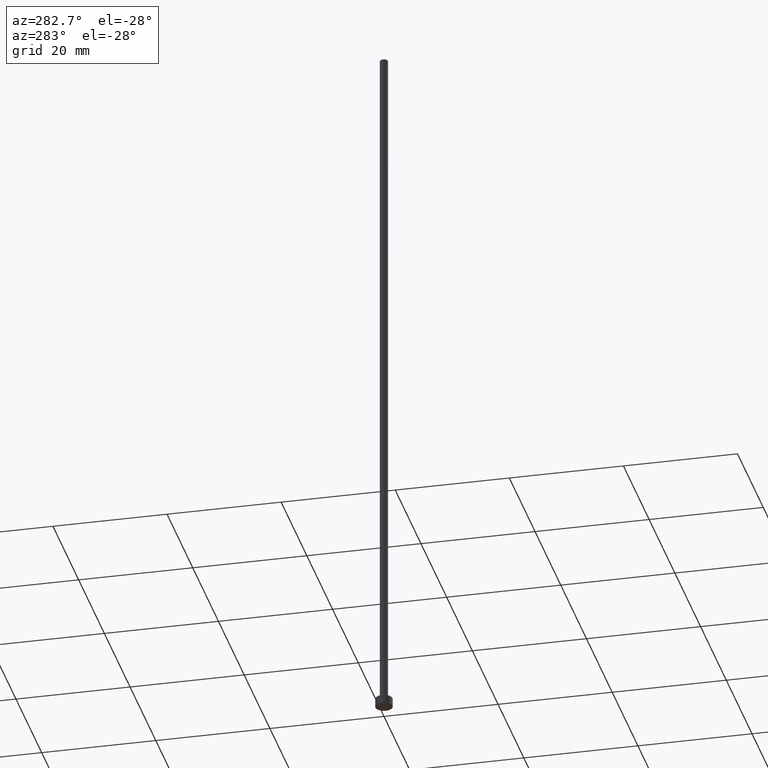
[diagram: clean part render]
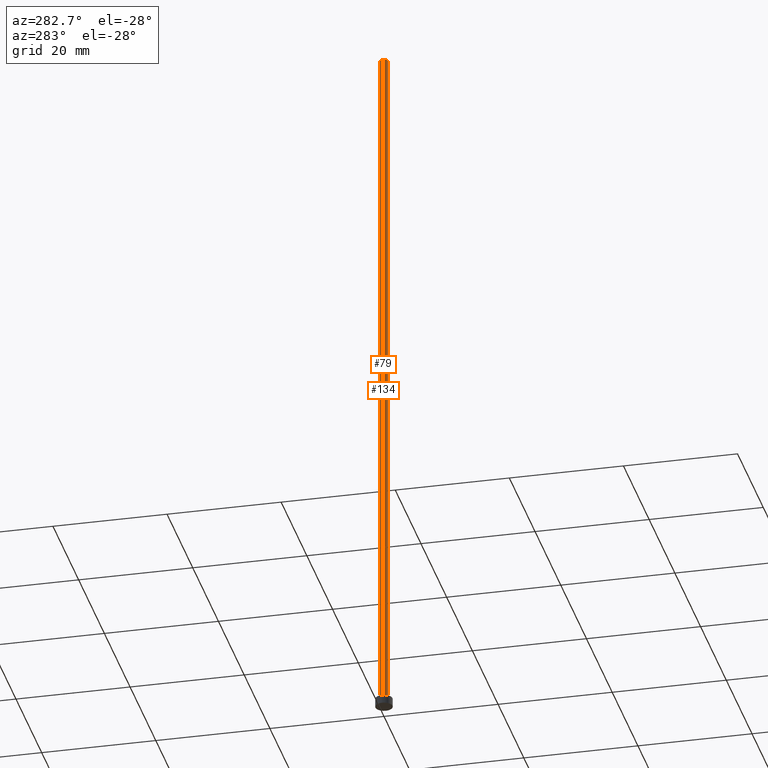
[diagram: same view with one multi-face feature highlighted, each face labeled with its STEP entity id]
A machine part, auxiliary view. The highlighted faces form ONE feature: a constant-radius fillet chain: 2 tangent blend faces with common blend radius 0.7 mm. The faces share edges in the B-rep.
Their STEP definitions:
[1] entity #79 (Cylinder):
#6 = CIRCLE ( 'NONE', #38, 0.6999999999999999556 ) ;
#8 = ORIENTED_EDGE ( 'NONE', *, *, #213, .F. ) ;
#11 = EDGE_CURVE ( 'NONE', #186, #139, #252, .T. ) ;
#13 = CARTESIAN_POINT ( 'NONE',  ( 0.000000000000000000, 0.000000000000000000, 125.0000000000000000 ) ) ;
#16 = CARTESIAN_POINT ( 'NONE',  ( 0.000000000000000000, 0.000000000000000000, 1.500000000000000000 ) ) ;
#35 = VECTOR ( 'NONE', #202, 1000.000000000000000 ) ;
#38 = AXIS2_PLACEMENT_3D ( 'NONE', #16, #148, #215 ) ;
#43 = CARTESIAN_POINT ( 'NONE',  ( -0.6999999999999999556, 0.000000000000000000, 125.0000000000000000 ) ) ;
#61 = AXIS2_PLACEMENT_3D ( 'NONE', #224, #182, #244 ) ;
#67 = DIRECTION ( 'NONE',  ( -1.000000000000000000, 0.000000000000000000, 0.000000000000000000 ) ) ;
#79 = ADVANCED_FACE ( 'NONE', ( #183 ), #180, .T. ) ;
#82 = CARTESIAN_POINT ( 'NONE',  ( 0.6999999999999999556, 8.572527594031471957E-17, 125.0000000000000000 ) ) ;
#84 = ORIENTED_EDGE ( 'NONE', *, *, #11, .F. ) ;
#88 = EDGE_CURVE ( 'NONE', #91, #139, #6, .T. ) ;
#90 = CARTESIAN_POINT ( 'NONE',  ( -0.6999999999999999556, 0.000000000000000000, 125.0000000000000000 ) ) ;
#91 = VERTEX_POINT ( 'NONE', #144 ) ;
#94 = CARTESIAN_POINT ( 'NONE',  ( 0.6999999999999999556, 8.572527594031471957E-17, 1.500000000000000000 ) ) ;
#102 = ORIENTED_EDGE ( 'NONE', *, *, #88, .T. ) ;
#113 = VERTEX_POINT ( 'NONE', #43 ) ;
#136 = LINE ( 'NONE', #90, #35 ) ;
#137 = AXIS2_PLACEMENT_3D ( 'NONE', #13, #245, #67 ) ;
#139 = VERTEX_POINT ( 'NONE', #94 ) ;
#143 = DIRECTION ( 'NONE',  ( -0.000000000000000000, -0.000000000000000000, -1.000000000000000000 ) ) ;
#144 = CARTESIAN_POINT ( 'NONE',  ( -0.6999999999999999556, 0.000000000000000000, 1.500000000000000000 ) ) ;
#148 = DIRECTION ( 'NONE',  ( 0.000000000000000000, 0.000000000000000000, 1.000000000000000000 ) ) ;
#159 = EDGE_CURVE ( 'NONE', #113, #91, #136, .T. ) ;
#164 = CIRCLE ( 'NONE', #61, 0.6999999999999999556 ) ;
#180 = CYLINDRICAL_SURFACE ( 'NONE', #137, 0.6999999999999999556 ) ;
#182 = DIRECTION ( 'NONE',  ( 0.000000000000000000, 0.000000000000000000, 1.000000000000000000 ) ) ;
#183 = FACE_OUTER_BOUND ( 'NONE', #205, .T. ) ;
#186 = VERTEX_POINT ( 'NONE', #243 ) ;
#192 = VECTOR ( 'NONE', #143, 1000.000000000000000 ) ;
#202 = DIRECTION ( 'NONE',  ( -0.000000000000000000, -0.000000000000000000, -1.000000000000000000 ) ) ;
#205 = EDGE_LOOP ( 'NONE', ( #84, #8, #208, #102 ) ) ;
#208 = ORIENTED_EDGE ( 'NONE', *, *, #159, .T. ) ;
#213 = EDGE_CURVE ( 'NONE', #113, #186, #164, .T. ) ;
#215 = DIRECTION ( 'NONE',  ( 1.000000000000000000, 0.000000000000000000, 0.000000000000000000 ) ) ;
#224 = CARTESIAN_POINT ( 'NONE',  ( 0.000000000000000000, 0.000000000000000000, 125.0000000000000000 ) ) ;
#243 = CARTESIAN_POINT ( 'NONE',  ( 0.6999999999999999556, 8.572527594031471957E-17, 125.0000000000000000 ) ) ;
#244 = DIRECTION ( 'NONE',  ( 1.000000000000000000, 0.000000000000000000, 0.000000000000000000 ) ) ;
#245 = DIRECTION ( 'NONE',  ( -0.000000000000000000, -0.000000000000000000, -1.000000000000000000 ) ) ;
#252 = LINE ( 'NONE', #82, #192 ) ;
[2] entity #134 (Cylinder):
#11 = EDGE_CURVE ( 'NONE', #186, #139, #252, .T. ) ;
#35 = VECTOR ( 'NONE', #202, 1000.000000000000000 ) ;
#40 = AXIS2_PLACEMENT_3D ( 'NONE', #240, #64, #112 ) ;
#43 = CARTESIAN_POINT ( 'NONE',  ( -0.6999999999999999556, 0.000000000000000000, 125.0000000000000000 ) ) ;
#50 = DIRECTION ( 'NONE',  ( 1.000000000000000000, 0.000000000000000000, 0.000000000000000000 ) ) ;
#55 = EDGE_CURVE ( 'NONE', #186, #113, #105, .T. ) ;
#58 = CIRCLE ( 'NONE', #117, 0.6999999999999999556 ) ;
#64 = DIRECTION ( 'NONE',  ( 0.000000000000000000, 0.000000000000000000, 1.000000000000000000 ) ) ;
#68 = EDGE_CURVE ( 'NONE', #139, #91, #58, .T. ) ;
#80 = ORIENTED_EDGE ( 'NONE', *, *, #55, .F. ) ;
#81 = DIRECTION ( 'NONE',  ( 0.000000000000000000, 0.000000000000000000, 1.000000000000000000 ) ) ;
#82 = CARTESIAN_POINT ( 'NONE',  ( 0.6999999999999999556, 8.572527594031471957E-17, 125.0000000000000000 ) ) ;
#90 = CARTESIAN_POINT ( 'NONE',  ( -0.6999999999999999556, 0.000000000000000000, 125.0000000000000000 ) ) ;
#91 = VERTEX_POINT ( 'NONE', #144 ) ;
#94 = CARTESIAN_POINT ( 'NONE',  ( 0.6999999999999999556, 8.572527594031471957E-17, 1.500000000000000000 ) ) ;
#95 = CARTESIAN_POINT ( 'NONE',  ( 0.000000000000000000, 0.000000000000000000, 1.500000000000000000 ) ) ;
#105 = CIRCLE ( 'NONE', #40, 0.6999999999999999556 ) ;
#112 = DIRECTION ( 'NONE',  ( 1.000000000000000000, 0.000000000000000000, 0.000000000000000000 ) ) ;
#113 = VERTEX_POINT ( 'NONE', #43 ) ;
#117 = AXIS2_PLACEMENT_3D ( 'NONE', #95, #81, #50 ) ;
#120 = ORIENTED_EDGE ( 'NONE', *, *, #68, .T. ) ;
#121 = CARTESIAN_POINT ( 'NONE',  ( 0.000000000000000000, 0.000000000000000000, 125.0000000000000000 ) ) ;
#134 = ADVANCED_FACE ( 'NONE', ( #138 ), #226, .T. ) ;
#136 = LINE ( 'NONE', #90, #35 ) ;
#138 = FACE_OUTER_BOUND ( 'NONE', #170, .T. ) ;
#139 = VERTEX_POINT ( 'NONE', #94 ) ;
#143 = DIRECTION ( 'NONE',  ( -0.000000000000000000, -0.000000000000000000, -1.000000000000000000 ) ) ;
#144 = CARTESIAN_POINT ( 'NONE',  ( -0.6999999999999999556, 0.000000000000000000, 1.500000000000000000 ) ) ;
#147 = AXIS2_PLACEMENT_3D ( 'NONE', #121, #153, #181 ) ;
#153 = DIRECTION ( 'NONE',  ( -0.000000000000000000, -0.000000000000000000, -1.000000000000000000 ) ) ;
#159 = EDGE_CURVE ( 'NONE', #113, #91, #136, .T. ) ;
#167 = ORIENTED_EDGE ( 'NONE', *, *, #159, .F. ) ;
#170 = EDGE_LOOP ( 'NONE', ( #80, #238, #120, #167 ) ) ;
#181 = DIRECTION ( 'NONE',  ( -1.000000000000000000, 0.000000000000000000, 0.000000000000000000 ) ) ;
#186 = VERTEX_POINT ( 'NONE', #243 ) ;
#192 = VECTOR ( 'NONE', #143, 1000.000000000000000 ) ;
#202 = DIRECTION ( 'NONE',  ( -0.000000000000000000, -0.000000000000000000, -1.000000000000000000 ) ) ;
#226 = CYLINDRICAL_SURFACE ( 'NONE', #147, 0.6999999999999999556 ) ;
#238 = ORIENTED_EDGE ( 'NONE', *, *, #11, .T. ) ;
#240 = CARTESIAN_POINT ( 'NONE',  ( 0.000000000000000000, 0.000000000000000000, 125.0000000000000000 ) ) ;
#243 = CARTESIAN_POINT ( 'NONE',  ( 0.6999999999999999556, 8.572527594031471957E-17, 125.0000000000000000 ) ) ;
#252 = LINE ( 'NONE', #82, #192 ) ;